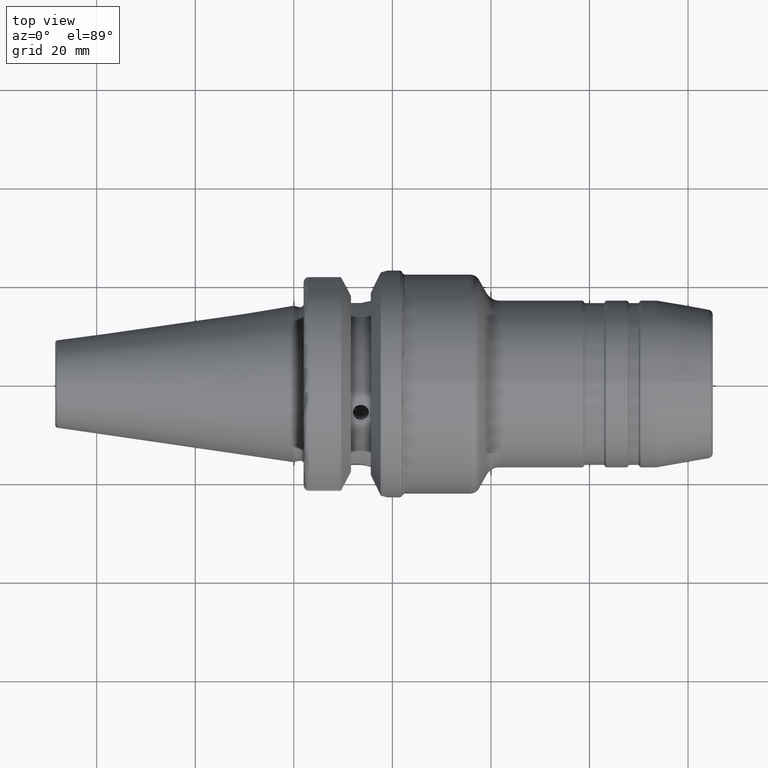
[diagram: clean part render]
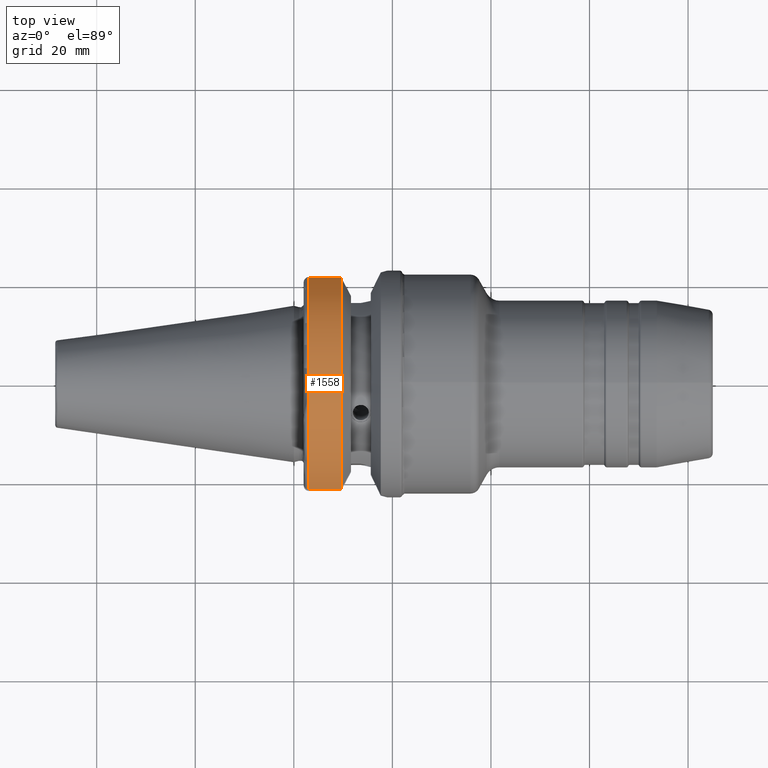
[diagram: same view with one face highlighted and labeled with its STEP entity id]
A machine part, top view. The second image highlights one B-rep face of the part: STEP entity #1558.
In plain terms, the highlighted cylindrical surface (partial cylindrical patch) has radius 23 mm, axis along (1, 0, 0).
Its self-contained STEP definition (entity closure, byte-faithful):
#165=LINE('',#2899,#238);
#181=LINE('',#3017,#254);
#238=VECTOR('',#2166,10.);
#254=VECTOR('',#2230,10.);
#300=CYLINDRICAL_SURFACE('',#1798,23.);
#390=FACE_OUTER_BOUND('',#494,.T.);
#494=EDGE_LOOP('',(#1428,#1429,#1430,#1431));
#554=CIRCLE('',#1694,23.);
#602=CIRCLE('',#1799,23.);
#667=VERTEX_POINT('',#2658);
#668=VERTEX_POINT('',#2669);
#715=VERTEX_POINT('',#2895);
#734=VERTEX_POINT('',#3012);
#851=EDGE_CURVE('',#668,#667,#554,.T.);
#916=EDGE_CURVE('',#667,#715,#165,.T.);
#953=EDGE_CURVE('',#734,#668,#181,.T.);
#980=EDGE_CURVE('',#734,#715,#602,.T.);
#1428=ORIENTED_EDGE('',*,*,#916,.T.);
#1429=ORIENTED_EDGE('',*,*,#980,.F.);
#1430=ORIENTED_EDGE('',*,*,#953,.T.);
#1431=ORIENTED_EDGE('',*,*,#851,.T.);
#1558=ADVANCED_FACE('',(#390),#300,.T.);
#1694=AXIS2_PLACEMENT_3D('',#2670,#2049,#2050);
#1798=AXIS2_PLACEMENT_3D('',#3072,#2305,#2306);
#1799=AXIS2_PLACEMENT_3D('',#3073,#2307,#2308);
#2049=DIRECTION('center_axis',(1.,1.62798202122572E-21,0.));
#2050=DIRECTION('ref_axis',(0.,0.,-1.));
#2166=DIRECTION('',(1.,1.62798202122572E-21,0.));
#2230=DIRECTION('',(-1.,-1.62798202122572E-21,0.));
#2305=DIRECTION('center_axis',(1.,1.62798202122572E-21,0.));
#2306=DIRECTION('ref_axis',(0.,1.,0.));
#2307=DIRECTION('center_axis',(1.,1.62798202122572E-21,0.));
#2308=DIRECTION('ref_axis',(0.,0.,-1.));
#2658=CARTESIAN_POINT('',(2.99999999999999,-21.5452430944745,8.05));
#2669=CARTESIAN_POINT('',(2.99999999999999,21.5452430944745,8.05));
#2670=CARTESIAN_POINT('Origin',(2.99999999999999,2.08174045357391E-15,0.));
#2895=CARTESIAN_POINT('',(9.57005904049381,-21.5452430944744,8.05));
#2899=CARTESIAN_POINT('',(6.2850295202469,-21.5452430944745,8.05));
#3012=CARTESIAN_POINT('',(9.57005904049381,21.5452430944744,8.05));
#3017=CARTESIAN_POINT('',(6.2850295202469,21.5452430944745,8.05));
#3072=CARTESIAN_POINT('Origin',(6.2850295202469,2.08174580154291E-15,0.));
#3073=CARTESIAN_POINT('Origin',(9.57005904049381,2.08175114951191E-15,0.));